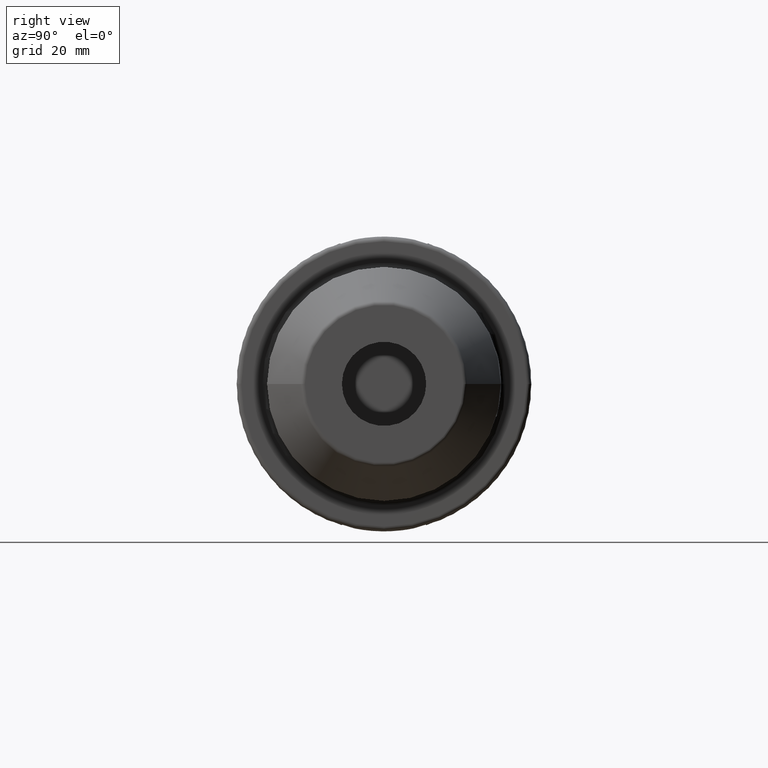
[diagram: clean part render]
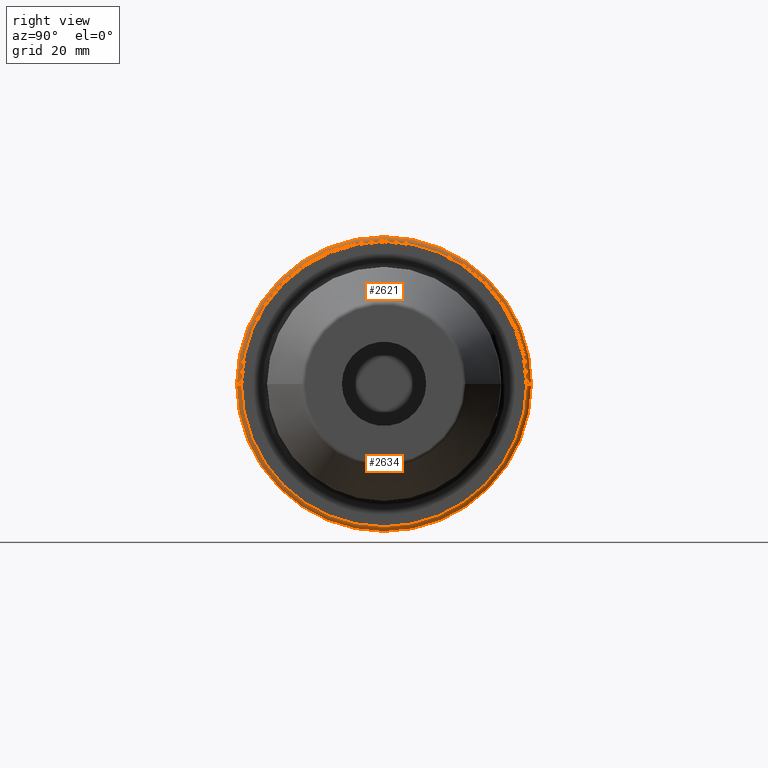
[diagram: same view with one multi-face feature highlighted, each face labeled with its STEP entity id]
A machine part, right view. The highlighted faces form ONE feature: a constant-radius fillet chain: 2 tangent blend faces with common blend radius 1 mm. The faces share edges in the B-rep.
Their STEP definitions:
[1] entity #2634 (Torus):
#255=CARTESIAN_POINT('',(2.6E1,0.E0,0.E0));
#256=DIRECTION('',(-1.E0,0.E0,0.E0));
#257=DIRECTION('',(0.E0,1.E0,0.E0));
#258=AXIS2_PLACEMENT_3D('',#255,#256,#257);
#821=CARTESIAN_POINT('',(2.6E1,3.04875E1,0.E0));
#822=DIRECTION('',(0.E0,0.E0,1.E0));
#823=DIRECTION('',(1.E0,0.E0,0.E0));
#824=AXIS2_PLACEMENT_3D('',#821,#822,#823);
#826=CARTESIAN_POINT('',(2.6E1,-3.04875E1,0.E0));
#827=DIRECTION('',(0.E0,0.E0,-1.E0));
#828=DIRECTION('',(1.E0,0.E0,0.E0));
#829=AXIS2_PLACEMENT_3D('',#826,#827,#828);
#831=CARTESIAN_POINT('',(2.7E1,0.E0,0.E0));
#832=DIRECTION('',(-1.E0,0.E0,0.E0));
#833=DIRECTION('',(0.E0,1.E0,0.E0));
#834=AXIS2_PLACEMENT_3D('',#831,#832,#833);
#1356=CARTESIAN_POINT('',(2.6E1,3.14875E1,0.E0));
#1357=VERTEX_POINT('',#1356);
#1358=CARTESIAN_POINT('',(2.6E1,-3.14875E1,0.E0));
#1359=VERTEX_POINT('',#1358);
#1426=CARTESIAN_POINT('',(2.7E1,3.04875E1,0.E0));
#1427=VERTEX_POINT('',#1426);
#1428=CARTESIAN_POINT('',(2.7E1,-3.04875E1,0.E0));
#1429=VERTEX_POINT('',#1428);
#2622=CARTESIAN_POINT('',(2.6E1,0.E0,0.E0));
#2623=DIRECTION('',(1.E0,0.E0,0.E0));
#2624=DIRECTION('',(0.E0,-1.E0,0.E0));
#2625=AXIS2_PLACEMENT_3D('',#2622,#2623,#2624);
#2626=TOROIDAL_SURFACE('',#2625,3.04875E1,1.E0);
#2627=ORIENTED_EDGE('',*,*,#2612,.T.);
#2628=ORIENTED_EDGE('',*,*,#1889,.T.);
#2629=ORIENTED_EDGE('',*,*,#2616,.F.);
#2631=ORIENTED_EDGE('',*,*,#2630,.F.);
#2632=EDGE_LOOP('',(#2627,#2628,#2629,#2631));
#2633=FACE_OUTER_BOUND('',#2632,.F.);
#2634=ADVANCED_FACE('',(#2633),#2626,.T.);
#259=CIRCLE('',#258,3.14875E1);
#825=CIRCLE('',#824,1.E0);
#830=CIRCLE('',#829,1.E0);
#835=CIRCLE('',#834,3.04875E1);
#1889=EDGE_CURVE('',#1357,#1359,#259,.T.);
#2612=EDGE_CURVE('',#1427,#1357,#825,.T.);
#2616=EDGE_CURVE('',#1429,#1359,#830,.T.);
#2630=EDGE_CURVE('',#1427,#1429,#835,.T.);
[2] entity #2621 (Torus):
#792=CARTESIAN_POINT('',(2.6E1,0.E0,0.E0));
#793=DIRECTION('',(1.E0,0.E0,0.E0));
#794=DIRECTION('',(0.E0,1.E0,0.E0));
#795=AXIS2_PLACEMENT_3D('',#792,#793,#794);
#816=CARTESIAN_POINT('',(2.7E1,0.E0,0.E0));
#817=DIRECTION('',(1.E0,0.E0,0.E0));
#818=DIRECTION('',(0.E0,1.E0,0.E0));
#819=AXIS2_PLACEMENT_3D('',#816,#817,#818);
#821=CARTESIAN_POINT('',(2.6E1,3.04875E1,0.E0));
#822=DIRECTION('',(0.E0,0.E0,1.E0));
#823=DIRECTION('',(1.E0,0.E0,0.E0));
#824=AXIS2_PLACEMENT_3D('',#821,#822,#823);
#826=CARTESIAN_POINT('',(2.6E1,-3.04875E1,0.E0));
#827=DIRECTION('',(0.E0,0.E0,-1.E0));
#828=DIRECTION('',(1.E0,0.E0,0.E0));
#829=AXIS2_PLACEMENT_3D('',#826,#827,#828);
#1356=CARTESIAN_POINT('',(2.6E1,3.14875E1,0.E0));
#1357=VERTEX_POINT('',#1356);
#1358=CARTESIAN_POINT('',(2.6E1,-3.14875E1,0.E0));
#1359=VERTEX_POINT('',#1358);
#1426=CARTESIAN_POINT('',(2.7E1,3.04875E1,0.E0));
#1427=VERTEX_POINT('',#1426);
#1428=CARTESIAN_POINT('',(2.7E1,-3.04875E1,0.E0));
#1429=VERTEX_POINT('',#1428);
#2607=CARTESIAN_POINT('',(2.6E1,0.E0,0.E0));
#2608=DIRECTION('',(1.E0,0.E0,0.E0));
#2609=DIRECTION('',(0.E0,-1.E0,0.E0));
#2610=AXIS2_PLACEMENT_3D('',#2607,#2608,#2609);
#2611=TOROIDAL_SURFACE('',#2610,3.04875E1,1.E0);
#2613=ORIENTED_EDGE('',*,*,#2612,.F.);
#2615=ORIENTED_EDGE('',*,*,#2614,.T.);
#2617=ORIENTED_EDGE('',*,*,#2616,.T.);
#2618=ORIENTED_EDGE('',*,*,#2598,.F.);
#2619=EDGE_LOOP('',(#2613,#2615,#2617,#2618));
#2620=FACE_OUTER_BOUND('',#2619,.F.);
#2621=ADVANCED_FACE('',(#2620),#2611,.T.);
#796=CIRCLE('',#795,3.14875E1);
#820=CIRCLE('',#819,3.04875E1);
#825=CIRCLE('',#824,1.E0);
#830=CIRCLE('',#829,1.E0);
#2598=EDGE_CURVE('',#1357,#1359,#796,.T.);
#2612=EDGE_CURVE('',#1427,#1357,#825,.T.);
#2614=EDGE_CURVE('',#1427,#1429,#820,.T.);
#2616=EDGE_CURVE('',#1429,#1359,#830,.T.);